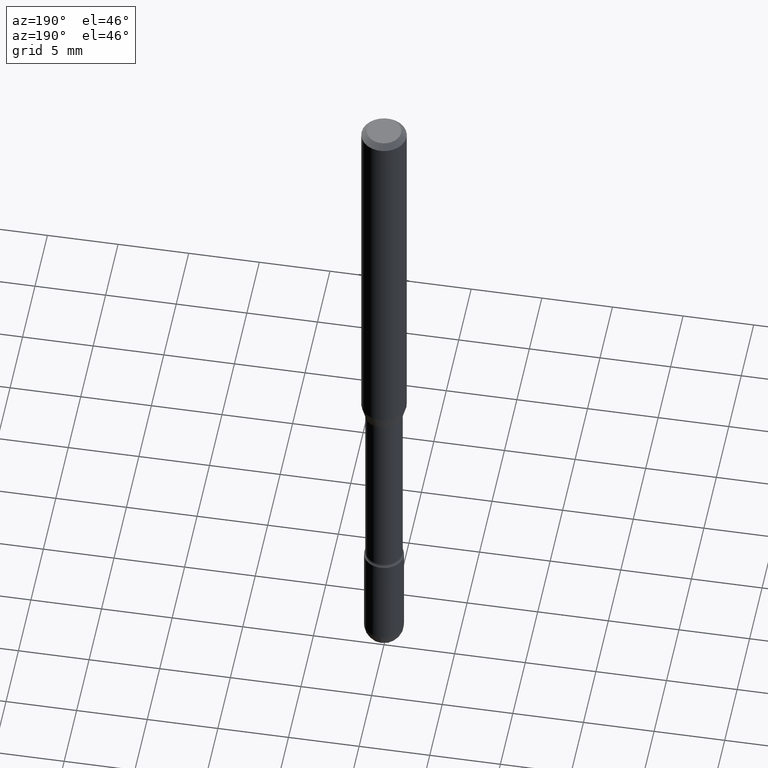
[diagram: clean part render]
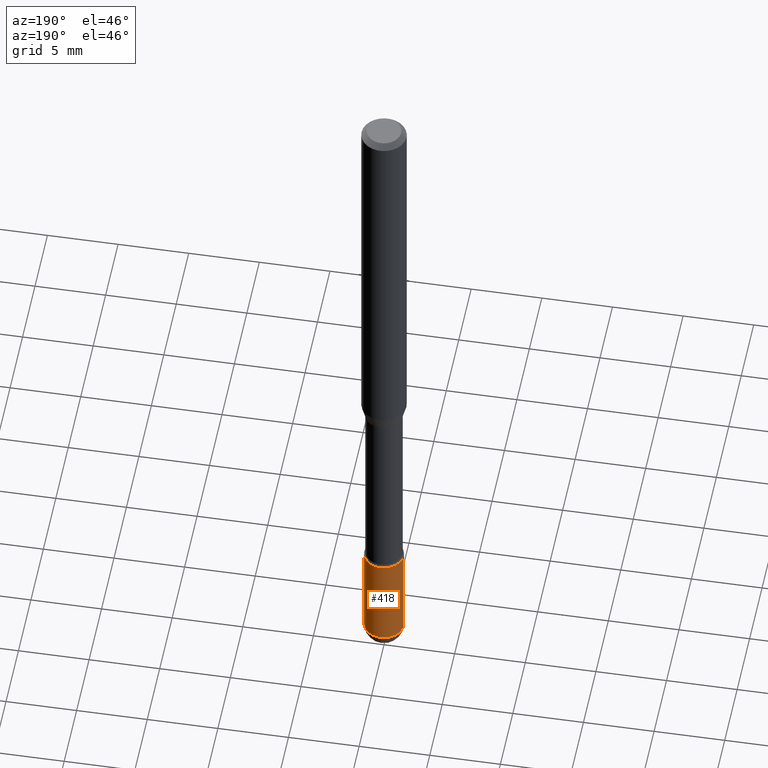
[diagram: same view with one face highlighted and labeled with its STEP entity id]
A machine part, auxiliary view. The second image highlights one B-rep face of the part: STEP entity #418.
In plain terms, the highlighted cylindrical surface (edge-blend (fillet) strip) has radius 1.397 mm, axis along (-0, 0, 1).
Its self-contained STEP definition (entity closure, byte-faithful):
#5 = DIRECTION ( 'NONE',  ( 1.000000000000000000, -6.982962677686262766E-15, 0.000000000000000000 ) ) ;
#17 = EDGE_CURVE ( 'NONE', #407, #453, #320, .T. ) ;
#20 = AXIS2_PLACEMENT_3D ( 'NONE', #333, #510, #238 ) ;
#27 = DIRECTION ( 'NONE',  ( -2.445468806185136597E-29, 3.491481338843145583E-15, 1.000000000000000000 ) ) ;
#38 = VERTEX_POINT ( 'NONE', #71 ) ;
#41 = DIRECTION ( 'NONE',  ( 1.000000000000000000, -6.982962677686266711E-15, 4.876176775795935793E-29 ) ) ;
#46 = EDGE_CURVE ( 'NONE', #453, #38, #356, .T. ) ;
#67 = EDGE_CURVE ( 'NONE', #38, #483, #268, .T. ) ;
#71 = CARTESIAN_POINT ( 'NONE',  ( -0.05500000000000000028, -5.920054015290930810E-15, -1.944999999999999840 ) ) ;
#116 = CARTESIAN_POINT ( 'NONE',  ( 4.756436828030090255E-29, -6.790931204049917095E-15, -1.944999999999999840 ) ) ;
#127 = CARTESIAN_POINT ( 'NONE',  ( -0.05500000000000000028, 3.907985046680551042E-16, -2.705414299640198362E-30 ) ) ;
#169 = ORIENTED_EDGE ( 'NONE', *, *, #517, .F. ) ;
#173 = DIRECTION ( 'NONE',  ( -2.445468806185136877E-29, 3.491481338843145188E-15, 1.000000000000000000 ) ) ;
#177 = CIRCLE ( 'NONE', #20, 0.05500000000000000028 ) ;
#184 = AXIS2_PLACEMENT_3D ( 'NONE', #116, #27, #202 ) ;
#202 = DIRECTION ( 'NONE',  ( 1.000000000000000000, -6.982962677686262766E-15, 0.000000000000000000 ) ) ;
#205 = VECTOR ( 'NONE', #173, 39.37007874015748143 ) ;
#213 = DIRECTION ( 'NONE',  ( -2.445468806185136597E-29, 3.491481338843145583E-15, 1.000000000000000000 ) ) ;
#219 = CARTESIAN_POINT ( 'NONE',  ( 4.756436828030090255E-29, -6.790931204049917095E-15, -1.944999999999999840 ) ) ;
#238 = DIRECTION ( 'NONE',  ( 1.000000000000000000, -6.982962677686262766E-15, 0.000000000000000000 ) ) ;
#248 = EDGE_CURVE ( 'NONE', #402, #483, #177, .T. ) ;
#259 = CARTESIAN_POINT ( 'NONE',  ( 0.05500000000000000028, -6.214836783140797252E-15, -1.669999999999999929 ) ) ;
#267 = DIRECTION ( 'NONE',  ( -2.445468806185136877E-29, 3.491481338843145188E-15, 1.000000000000000000 ) ) ;
#268 = LINE ( 'NONE', #127, #205 ) ;
#280 = ORIENTED_EDGE ( 'NONE', *, *, #67, .T. ) ;
#301 = AXIS2_PLACEMENT_3D ( 'NONE', #219, #213, #5 ) ;
#304 = FACE_OUTER_BOUND ( 'NONE', #561, .T. ) ;
#314 = AXIS2_PLACEMENT_3D ( 'NONE', #348, #520, #41 ) ;
#320 = CIRCLE ( 'NONE', #184, 0.05500000000000000028 ) ;
#333 = CARTESIAN_POINT ( 'NONE',  ( 4.083932906329177803E-29, -5.830773835868053056E-15, -1.669999999999999929 ) ) ;
#341 = ORIENTED_EDGE ( 'NONE', *, *, #248, .F. ) ;
#348 = CARTESIAN_POINT ( 'NONE',  ( 0.000000000000000000, 0.000000000000000000, 0.000000000000000000 ) ) ;
#356 = CIRCLE ( 'NONE', #301, 0.05500000000000000028 ) ;
#359 = CARTESIAN_POINT ( 'NONE',  ( -0.05500000000000000028, -5.920054015290930021E-15, -1.669999999999999929 ) ) ;
#393 = CARTESIAN_POINT ( 'NONE',  ( 0.05500000000000000028, -6.694915467231730455E-15, -1.944999999999999840 ) ) ;
#402 = VERTEX_POINT ( 'NONE', #259 ) ;
#407 = VERTEX_POINT ( 'NONE', #393 ) ;
#418 = ADVANCED_FACE ( 'NONE', ( #304 ), #432, .T. ) ;
#432 = CYLINDRICAL_SURFACE ( 'NONE', #314, 0.05500000000000000028 ) ;
#442 = CARTESIAN_POINT ( 'NONE',  ( 3.840629472727923656E-16, 0.05499999999999323486, -1.945000000000000062 ) ) ;
#447 = ORIENTED_EDGE ( 'NONE', *, *, #17, .T. ) ;
#453 = VERTEX_POINT ( 'NONE', #442 ) ;
#458 = VECTOR ( 'NONE', #267, 39.37007874015748143 ) ;
#483 = VERTEX_POINT ( 'NONE', #359 ) ;
#487 = CARTESIAN_POINT ( 'NONE',  ( 0.05500000000000000028, -3.840629472727446888E-16, 2.681897226687764826E-30 ) ) ;
#510 = DIRECTION ( 'NONE',  ( -2.445468806185136597E-29, 3.491481338843145583E-15, 1.000000000000000000 ) ) ;
#517 = EDGE_CURVE ( 'NONE', #407, #402, #532, .T. ) ;
#520 = DIRECTION ( 'NONE',  ( -2.445468806185136597E-29, 3.491481338843145583E-15, 1.000000000000000000 ) ) ;
#532 = LINE ( 'NONE', #487, #458 ) ;
#552 = ORIENTED_EDGE ( 'NONE', *, *, #46, .T. ) ;
#561 = EDGE_LOOP ( 'NONE', ( #552, #280, #341, #169, #447 ) ) ;